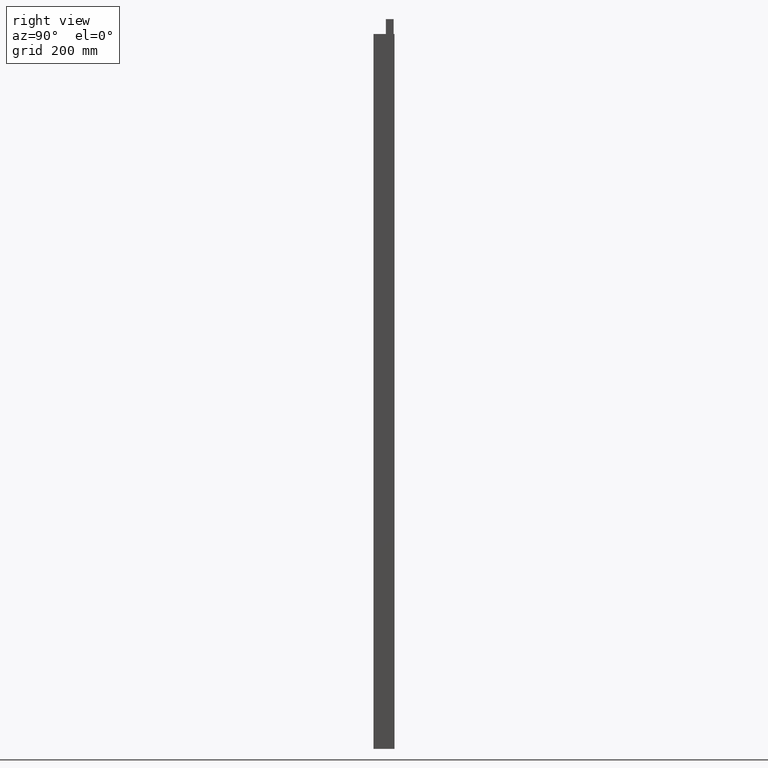
[diagram: clean part render]
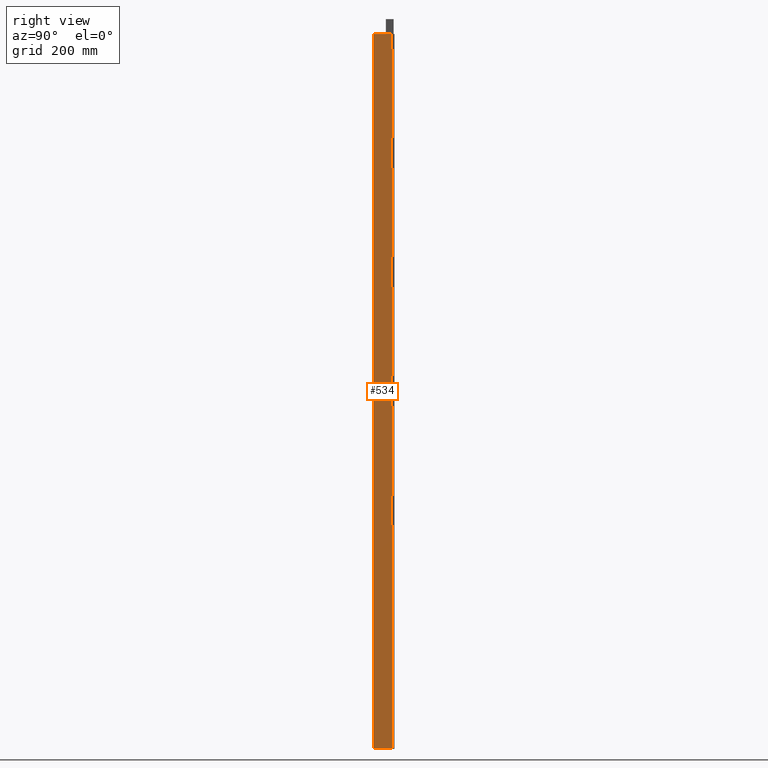
[diagram: same view with one face highlighted and labeled with its STEP entity id]
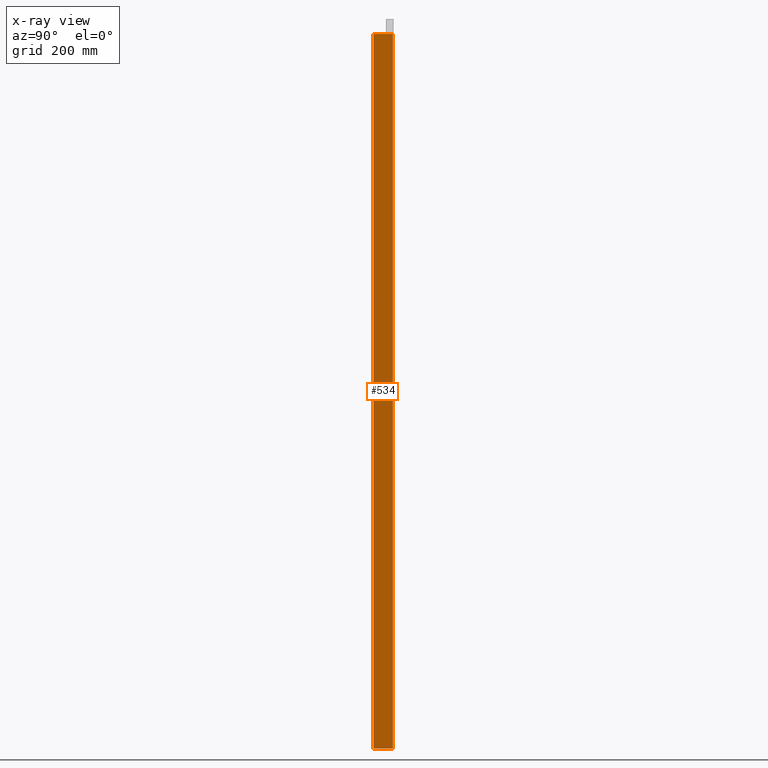
[diagram: x-ray of the same camera — body ghosted, the highlighted face saturated]
A machine part, right view. The second image highlights one B-rep face of the part: STEP entity #534.
The next image is the same camera in x-ray: the body ghosted, the highlighted face saturated — about 0% of this face is hidden behind the body in this view.
In plain terms, the highlighted planar face has unit normal (1, 0, 0).
Its self-contained STEP definition (entity closure, byte-faithful):
#326=DIRECTION('',(0.E0,1.E0,0.E0));
#327=VECTOR('',#326,6.5E1);
#328=CARTESIAN_POINT('',(7.5E1,0.E0,0.E0));
#329=LINE('',#328,#327);
#334=DIRECTION('',(0.E0,0.E0,-1.E0));
#335=VECTOR('',#334,2.4E3);
#336=CARTESIAN_POINT('',(7.5E1,0.E0,0.E0));
#337=LINE('',#336,#335);
#338=DIRECTION('',(0.E0,0.E0,-1.E0));
#339=VECTOR('',#338,2.4E3);
#340=CARTESIAN_POINT('',(7.5E1,6.5E1,0.E0));
#341=LINE('',#340,#339);
#382=DIRECTION('',(0.E0,1.E0,0.E0));
#383=VECTOR('',#382,6.5E1);
#384=CARTESIAN_POINT('',(7.5E1,0.E0,-2.4E3));
#385=LINE('',#384,#383);
#427=CARTESIAN_POINT('',(7.5E1,0.E0,0.E0));
#429=VERTEX_POINT('',#427);
#430=CARTESIAN_POINT('',(7.5E1,6.5E1,0.E0));
#431=VERTEX_POINT('',#430);
#451=CARTESIAN_POINT('',(7.5E1,0.E0,-2.4E3));
#453=VERTEX_POINT('',#451);
#454=CARTESIAN_POINT('',(7.5E1,6.5E1,-2.4E3));
#455=VERTEX_POINT('',#454);
#521=CARTESIAN_POINT('',(7.5E1,0.E0,0.E0));
#522=DIRECTION('',(1.E0,0.E0,0.E0));
#523=DIRECTION('',(0.E0,1.E0,0.E0));
#524=AXIS2_PLACEMENT_3D('',#521,#522,#523);
#525=PLANE('',#524);
#526=ORIENTED_EDGE('',*,*,#501,.T.);
#528=ORIENTED_EDGE('',*,*,#527,.T.);
#530=ORIENTED_EDGE('',*,*,#529,.F.);
#531=ORIENTED_EDGE('',*,*,#512,.F.);
#532=EDGE_LOOP('',(#526,#528,#530,#531));
#533=FACE_OUTER_BOUND('',#532,.F.);
#501=EDGE_CURVE('',#429,#431,#329,.T.);
#512=EDGE_CURVE('',#429,#453,#337,.T.);
#527=EDGE_CURVE('',#431,#455,#341,.T.);
#529=EDGE_CURVE('',#453,#455,#385,.T.);
#534=ADVANCED_FACE('',(#533),#525,.T.);